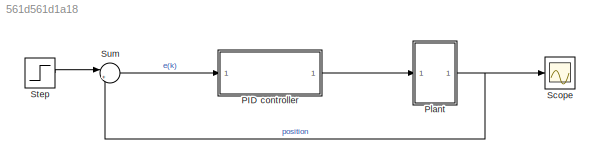
MODEL slx_561d561d1a18
KIND model
CONFIG AbsTol = auto
CONFIG EnableMultiTasking = off
CONFIG FixedStep = auto
CONFIG MaxStep = auto
CONFIG MinStep = auto
CONFIG RelTol = 1e-3
CONFIG SampleTimeConstraint = Unconstrained
CONFIG Solver = VariableStepAuto
CONFIG SolverName = VariableStepAuto
CONFIG StartTime = 0.0
CONFIG StopTime = 0.2
BLOCK [ModelReference] PID controller
  ModelNameDialog = PID_controller
  ModelReferenceVersion = 1.15
  Ports = [1, 1]
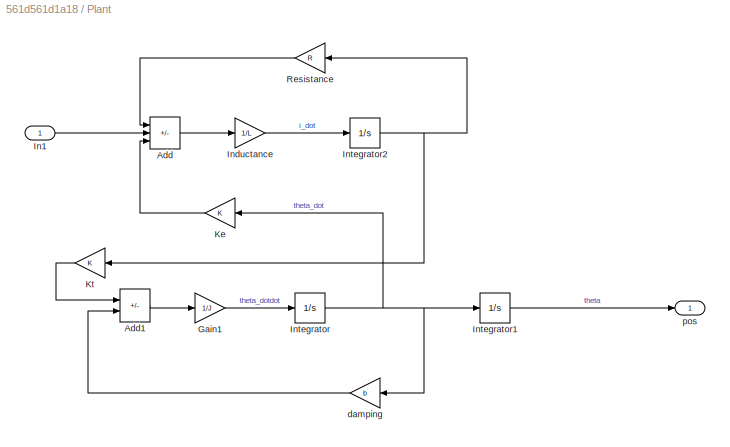
BLOCK [SubSystem] Plant
  Ports = [1, 1]
  RequestExecContextInheritance = off
BLOCK [Sum] Plant/Add
  IconShape = rectangular
  Inputs = -+-
  Ports = [3, 1]
BLOCK [Sum] Plant/Add1
  IconShape = rectangular
  Inputs = +-
  Ports = [2, 1]
BLOCK [Gain] Plant/Gain1
  Gain = 1/J
BLOCK [Inport] Plant/In1
BLOCK [Gain] Plant/Inductance
  Gain = 1/L
BLOCK [Integrator] Plant/Integrator
  Ports = [1, 1]
BLOCK [Integrator] Plant/Integrator1
  Ports = [1, 1]
BLOCK [Integrator] Plant/Integrator2
  Ports = [1, 1]
BLOCK [Gain] Plant/Ke
  Gain = K
BLOCK [Gain] Plant/Kt
  Gain = K
BLOCK [Gain] Plant/Resistance
  Gain = R
BLOCK [Gain] Plant/damping
  Gain = b
BLOCK [Outport] Plant/pos
BLOCK [Scope] Scope
  Floating = off
  NumInputPorts = 1
  Ports = [1]
  ScopeSpecificationString = Simulink.scopes.TimeScopeBlockCfg('CurrentConfiguration', extmgr.ConfigurationSet(extmgr.Configuration('Core','General UI',true),extmgr.Configuration('Core','Source UI',true),extmgr.Configuration('Sources','WiredSimulink',true),extmgr.Configuration('Visuals','Time Domain',true,'SerializedDisplays',{struct('MinYLimReal','-0.143','MaxYLimReal','1.28704','YLabelReal','','MinYLimMag','0.00000','MaxYLi...<+1348ch>
BLOCK [Step] Step
  SampleTime = 0
  Time = 0
BLOCK [Sum] Sum
  Inputs = |+-
  Ports = [2, 1]
LINE PID controller:1 -> Plant:1
LINE Plant/Add1:1 -> Plant/Gain1:1
LINE Plant/Add:1 -> Plant/Inductance:1
LINE Plant/Gain1:1 -> Plant/Integrator:1
LINE Plant/In1:1 -> Plant/Add:2
LINE Plant/Inductance:1 -> Plant/Integrator2:1
LINE Plant/Integrator1:1 -> Plant/pos:1
NET Plant/Integrator2:1 -> Plant/Kt:1, Plant/Resistance:1
NET Plant/Integrator:1 -> Plant/Integrator1:1, Plant/Ke:1, Plant/damping:1
LINE Plant/Ke:1 -> Plant/Add:3
LINE Plant/Kt:1 -> Plant/Add1:1
LINE Plant/Resistance:1 -> Plant/Add:1
LINE Plant/damping:1 -> Plant/Add1:2
NET Plant:1 -> Scope:1, Sum:2
LINE Step:1 -> Sum:1
LINE Sum:1 -> PID controller:1
note: NET lines group one-source signal fan-out (src -> all destinations, sorted); 1:1 wires keep LINE
